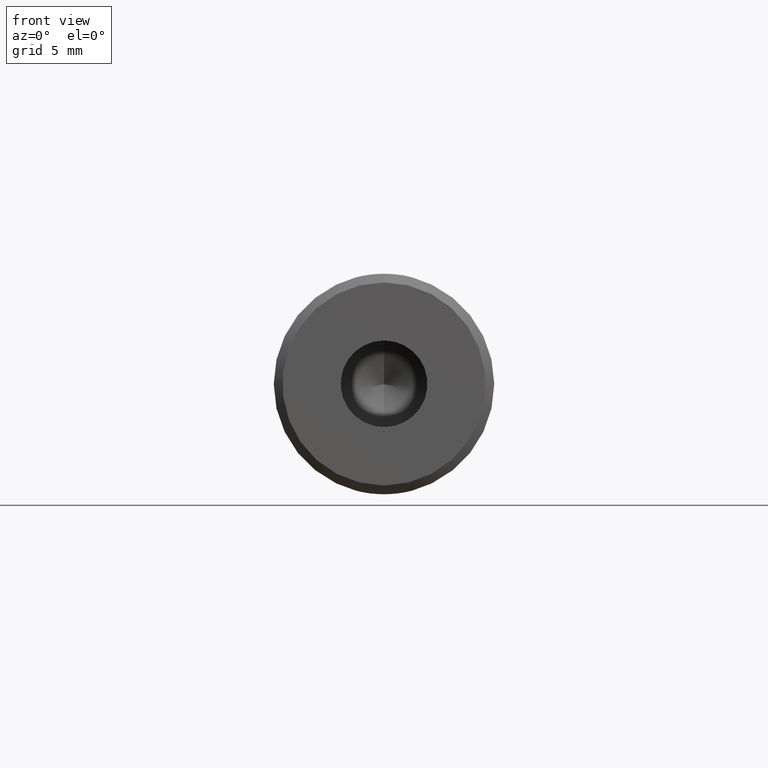
[diagram: clean part render]
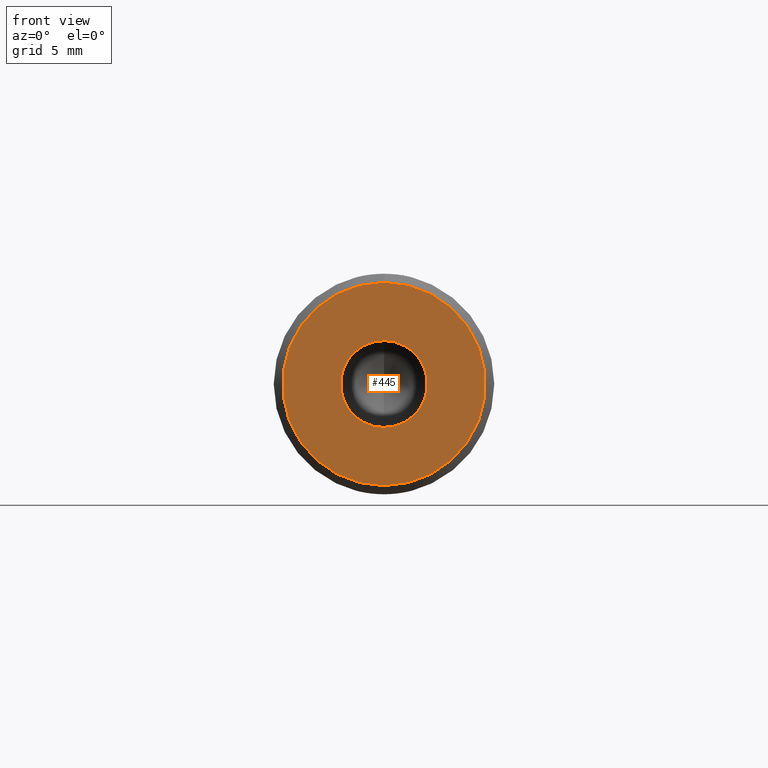
[diagram: same view with one face highlighted and labeled with its STEP entity id]
A machine part, front view. The second image highlights one B-rep face of the part: STEP entity #445.
In plain terms, the highlighted planar face has unit normal (0, 1, 0).
Its self-contained STEP definition (entity closure, byte-faithful):
#35 = CARTESIAN_POINT ( 'NONE',  ( 0.0000000000000000000, 1.040949779275261000E-016, -2.499999999999998200 ) ) ;
#59 = EDGE_CURVE ( 'NONE', #107, #121, #130, .T. ) ;
#83 = CARTESIAN_POINT ( 'NONE',  ( 0.0000000000000000000, -1.136868377216160300E-010, 0.0000000000000000000 ) ) ;
#97 = DIRECTION ( 'NONE',  ( 0.0000000000000000000, 0.0000000000000000000, 1.000000000000000000 ) ) ;
#107 = VERTEX_POINT ( 'NONE', #141 ) ;
#121 = VERTEX_POINT ( 'NONE', #35 ) ;
#130 = CIRCLE ( 'NONE', #456, 2.499999999999998200 ) ;
#137 = DIRECTION ( 'NONE',  ( -0.0000000000000000000, -1.000000000000000000, -0.0000000000000000000 ) ) ;
#141 = CARTESIAN_POINT ( 'NONE',  ( 3.061616997868381200E-016, 1.040949779275261000E-016, 2.499999999999998200 ) ) ;
#149 = ORIENTED_EDGE ( 'NONE', *, *, #59, .F. ) ;
#173 = AXIS2_PLACEMENT_3D ( 'NONE', #452, #437, #373 ) ;
#190 = DIRECTION ( 'NONE',  ( 0.0000000000000000000, 1.000000000000000000, 0.0000000000000000000 ) ) ;
#192 = AXIS2_PLACEMENT_3D ( 'NONE', #737, #190, #443 ) ;
#209 = FACE_OUTER_BOUND ( 'NONE', #463, .T. ) ;
#251 = EDGE_CURVE ( 'NONE', #121, #107, #693, .T. ) ;
#275 = CIRCLE ( 'NONE', #422, 5.849999999952615300 ) ;
#307 = ORIENTED_EDGE ( 'NONE', *, *, #683, .F. ) ;
#340 = CARTESIAN_POINT ( 'NONE',  ( 0.0000000000000000000, 1.040949779275261000E-016, 0.0000000000000000000 ) ) ;
#373 = DIRECTION ( 'NONE',  ( 0.0000000000000000000, 0.0000000000000000000, 1.000000000000000000 ) ) ;
#391 = VERTEX_POINT ( 'NONE', #438 ) ;
#401 = DIRECTION ( 'NONE',  ( -0.0000000000000000000, -1.000000000000000000, -0.0000000000000000000 ) ) ;
#422 = AXIS2_PLACEMENT_3D ( 'NONE', #83, #531, #97 ) ;
#437 = DIRECTION ( 'NONE',  ( -0.0000000000000000000, 1.000000000000000000, 0.0000000000000000000 ) ) ;
#438 = CARTESIAN_POINT ( 'NONE',  ( 7.470345474810455500E-016, -1.136868377216160300E-010, -5.849999999952615300 ) ) ;
#443 = DIRECTION ( 'NONE',  ( 0.0000000000000000000, -0.0000000000000000000, 1.000000000000000000 ) ) ;
#445 = ADVANCED_FACE ( 'NONE', ( #450, #209 ), #790, .F. ) ;
#450 = FACE_BOUND ( 'NONE', #783, .T. ) ;
#452 = CARTESIAN_POINT ( 'NONE',  ( 0.0000000000000000000, -1.136868377216160300E-010, 0.0000000000000000000 ) ) ;
#456 = AXIS2_PLACEMENT_3D ( 'NONE', #340, #137, #579 ) ;
#463 = EDGE_LOOP ( 'NONE', ( #307, #487 ) ) ;
#464 = DIRECTION ( 'NONE',  ( 0.0000000000000000000, 0.0000000000000000000, -1.000000000000000000 ) ) ;
#487 = ORIENTED_EDGE ( 'NONE', *, *, #499, .F. ) ;
#499 = EDGE_CURVE ( 'NONE', #391, #759, #578, .T. ) ;
#531 = DIRECTION ( 'NONE',  ( -0.0000000000000000000, 1.000000000000000000, 0.0000000000000000000 ) ) ;
#578 = CIRCLE ( 'NONE', #173, 5.849999999952615300 ) ;
#579 = DIRECTION ( 'NONE',  ( 0.0000000000000000000, 0.0000000000000000000, -1.000000000000000000 ) ) ;
#586 = CARTESIAN_POINT ( 'NONE',  ( 0.0000000000000000000, -1.136868377216160300E-010, 5.849999999952615300 ) ) ;
#642 = AXIS2_PLACEMENT_3D ( 'NONE', #757, #401, #464 ) ;
#675 = ORIENTED_EDGE ( 'NONE', *, *, #251, .F. ) ;
#683 = EDGE_CURVE ( 'NONE', #759, #391, #275, .T. ) ;
#693 = CIRCLE ( 'NONE', #642, 2.499999999999998200 ) ;
#737 = CARTESIAN_POINT ( 'NONE',  ( 0.0000000000000000000, 0.0000000000000000000, 0.0000000000000000000 ) ) ;
#757 = CARTESIAN_POINT ( 'NONE',  ( 0.0000000000000000000, 1.040949779275261000E-016, 0.0000000000000000000 ) ) ;
#759 = VERTEX_POINT ( 'NONE', #586 ) ;
#783 = EDGE_LOOP ( 'NONE', ( #675, #149 ) ) ;
#790 = PLANE ( 'NONE',  #192 ) ;